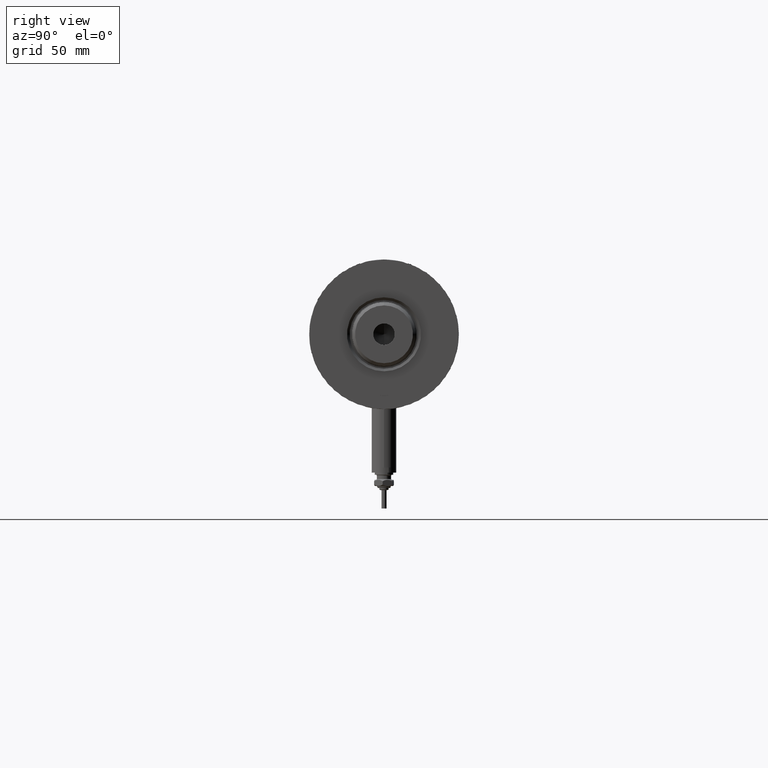
[diagram: clean part render]
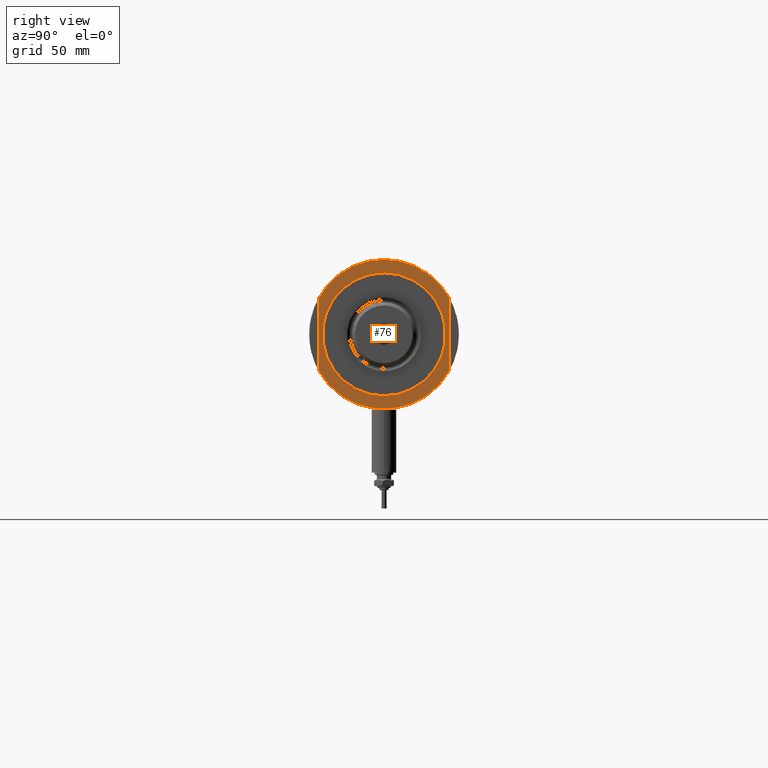
[diagram: same view with one face highlighted and labeled with its STEP entity id]
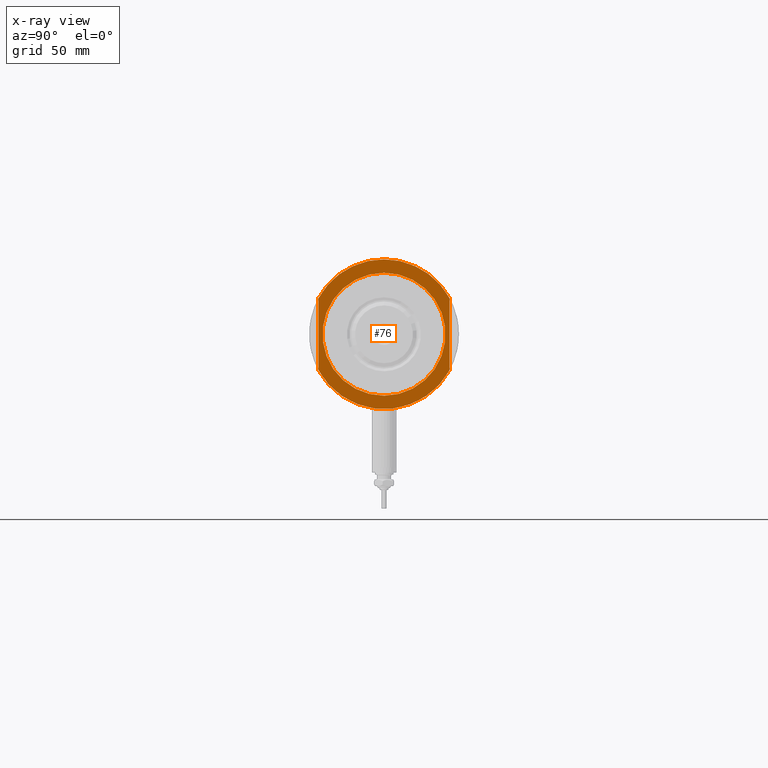
[diagram: x-ray of the same camera — body ghosted, the highlighted face saturated]
A machine part, right view. The second image highlights one B-rep face of the part: STEP entity #76.
The next image is the same camera in x-ray: the body ghosted, the highlighted face saturated — about 0% of this face is hidden behind the body in this view.
In plain terms, the highlighted planar face has unit normal (1, 0, -0).
Its self-contained STEP definition (entity closure, byte-faithful):
#76 = ADVANCED_FACE ( 'NONE', ( #3753, #548 ), #5597, .T. ) ;
#102 = AXIS2_PLACEMENT_3D ( 'NONE', #2556, #2503, #4813 ) ;
#548 = FACE_OUTER_BOUND ( 'NONE', #5417, .T. ) ;
#610 = VERTEX_POINT ( 'NONE', #2328 ) ;
#956 = VECTOR ( 'NONE', #2425, 1000.000000000000000 ) ;
#965 = EDGE_LOOP ( 'NONE', ( #3883, #2728 ) ) ;
#1015 = ORIENTED_EDGE ( 'NONE', *, *, #1913, .F. ) ;
#1193 = CARTESIAN_POINT ( 'NONE',  ( 0.000000000000000000, 0.000000000000000000, 25.19999999999999929 ) ) ;
#1303 = DIRECTION ( 'NONE',  ( 1.000000000000000000, 0.000000000000000000, 0.000000000000000000 ) ) ;
#1349 = CIRCLE ( 'NONE', #4891, 30.00000000000000355 ) ;
#1515 = DIRECTION ( 'NONE',  ( 1.000000000000000000, 0.000000000000000000, -0.000000000000000000 ) ) ;
#1576 = DIRECTION ( 'NONE',  ( 0.000000000000000000, 0.000000000000000000, 1.000000000000000000 ) ) ;
#1654 = CARTESIAN_POINT ( 'NONE',  ( 0.000000000000000000, 0.000000000000000000, 25.19999999999999929 ) ) ;
#1664 = VERTEX_POINT ( 'NONE', #3580 ) ;
#1794 = DIRECTION ( 'NONE',  ( 0.000000000000000000, 0.000000000000000000, 1.000000000000000000 ) ) ;
#1795 = VERTEX_POINT ( 'NONE', #2454 ) ;
#1841 = CARTESIAN_POINT ( 'NONE',  ( 17.55704986607943496, -32.00000000000000000, 25.19999999999999929 ) ) ;
#1906 = CARTESIAN_POINT ( 'NONE',  ( -17.55704986607943496, 32.00000000000000000, 25.19999999999999929 ) ) ;
#1913 = EDGE_CURVE ( 'NONE', #3114, #2917, #3025, .T. ) ;
#2035 = DIRECTION ( 'NONE',  ( 1.000000000000000000, 0.000000000000000000, 0.000000000000000000 ) ) ;
#2096 = DIRECTION ( 'NONE',  ( 0.000000000000000000, 0.000000000000000000, 1.000000000000000000 ) ) ;
#2118 = CIRCLE ( 'NONE', #2781, 36.50000000000000000 ) ;
#2295 = CARTESIAN_POINT ( 'NONE',  ( -17.55704986607943496, -32.00000000000000000, 25.19999999999999929 ) ) ;
#2328 = CARTESIAN_POINT ( 'NONE',  ( -36.50000000000000000, 0.000000000000000000, 25.19999999999999929 ) ) ;
#2397 = CARTESIAN_POINT ( 'NONE',  ( -17.55704986607943141, 32.00000000000000000, 25.19999999999999929 ) ) ;
#2425 = DIRECTION ( 'NONE',  ( 1.000000000000000000, 0.000000000000000000, 0.000000000000000000 ) ) ;
#2428 = DIRECTION ( 'NONE',  ( -1.000000000000000000, -0.000000000000000000, -0.000000000000000000 ) ) ;
#2454 = CARTESIAN_POINT ( 'NONE',  ( 17.55704986607943496, 32.00000000000000000, 25.19999999999999929 ) ) ;
#2503 = DIRECTION ( 'NONE',  ( -0.000000000000000000, -0.000000000000000000, -1.000000000000000000 ) ) ;
#2506 = EDGE_CURVE ( 'NONE', #5654, #610, #5248, .T. ) ;
#2556 = CARTESIAN_POINT ( 'NONE',  ( 0.000000000000000000, 0.000000000000000000, 25.19999999999999929 ) ) ;
#2567 = AXIS2_PLACEMENT_3D ( 'NONE', #3276, #1794, #5112 ) ;
#2728 = ORIENTED_EDGE ( 'NONE', *, *, #5362, .T. ) ;
#2781 = AXIS2_PLACEMENT_3D ( 'NONE', #1193, #3011, #5749 ) ;
#2891 = ORIENTED_EDGE ( 'NONE', *, *, #2506, .T. ) ;
#2917 = VERTEX_POINT ( 'NONE', #2295 ) ;
#2969 = CIRCLE ( 'NONE', #3725, 36.50000000000000000 ) ;
#3011 = DIRECTION ( 'NONE',  ( 0.000000000000000000, 0.000000000000000000, 1.000000000000000000 ) ) ;
#3025 = LINE ( 'NONE', #5734, #5035 ) ;
#3038 = AXIS2_PLACEMENT_3D ( 'NONE', #3300, #1576, #1515 ) ;
#3114 = VERTEX_POINT ( 'NONE', #1841 ) ;
#3276 = CARTESIAN_POINT ( 'NONE',  ( 0.000000000000000000, 0.000000000000000000, 25.19999999999999929 ) ) ;
#3300 = CARTESIAN_POINT ( 'NONE',  ( 0.000000000000000000, 0.000000000000000000, 25.19999999999999929 ) ) ;
#3453 = CIRCLE ( 'NONE', #102, 30.00000000000000355 ) ;
#3580 = CARTESIAN_POINT ( 'NONE',  ( 30.00000000000000355, 0.000000000000000000, 25.19999999999999929 ) ) ;
#3725 = AXIS2_PLACEMENT_3D ( 'NONE', #1654, #2096, #2035 ) ;
#3753 = FACE_BOUND ( 'NONE', #965, .T. ) ;
#3761 = ORIENTED_EDGE ( 'NONE', *, *, #4511, .T. ) ;
#3883 = ORIENTED_EDGE ( 'NONE', *, *, #4280, .T. ) ;
#4245 = LINE ( 'NONE', #2397, #956 ) ;
#4280 = EDGE_CURVE ( 'NONE', #1664, #5590, #1349, .T. ) ;
#4415 = EDGE_CURVE ( 'NONE', #5654, #1795, #4245, .T. ) ;
#4466 = ORIENTED_EDGE ( 'NONE', *, *, #4415, .F. ) ;
#4511 = EDGE_CURVE ( 'NONE', #610, #2917, #2969, .T. ) ;
#4813 = DIRECTION ( 'NONE',  ( 1.000000000000000000, 0.000000000000000000, 0.000000000000000000 ) ) ;
#4891 = AXIS2_PLACEMENT_3D ( 'NONE', #4999, #5891, #1303 ) ;
#4999 = CARTESIAN_POINT ( 'NONE',  ( 0.000000000000000000, 0.000000000000000000, 25.19999999999999929 ) ) ;
#5035 = VECTOR ( 'NONE', #2428, 1000.000000000000000 ) ;
#5112 = DIRECTION ( 'NONE',  ( 1.000000000000000000, 0.000000000000000000, 0.000000000000000000 ) ) ;
#5143 = ORIENTED_EDGE ( 'NONE', *, *, #5425, .T. ) ;
#5248 = CIRCLE ( 'NONE', #2567, 36.50000000000000000 ) ;
#5357 = CARTESIAN_POINT ( 'NONE',  ( -30.00000000000000355, 3.673940397442059178E-15, 25.19999999999999929 ) ) ;
#5362 = EDGE_CURVE ( 'NONE', #5590, #1664, #3453, .T. ) ;
#5417 = EDGE_LOOP ( 'NONE', ( #1015, #5143, #4466, #2891, #3761 ) ) ;
#5425 = EDGE_CURVE ( 'NONE', #3114, #1795, #2118, .T. ) ;
#5590 = VERTEX_POINT ( 'NONE', #5357 ) ;
#5597 = PLANE ( 'NONE',  #3038 ) ;
#5654 = VERTEX_POINT ( 'NONE', #1906 ) ;
#5734 = CARTESIAN_POINT ( 'NONE',  ( -17.55704986607943141, -32.00000000000000000, 25.19999999999999929 ) ) ;
#5749 = DIRECTION ( 'NONE',  ( 1.000000000000000000, 0.000000000000000000, 0.000000000000000000 ) ) ;
#5891 = DIRECTION ( 'NONE',  ( -0.000000000000000000, -0.000000000000000000, -1.000000000000000000 ) ) ;